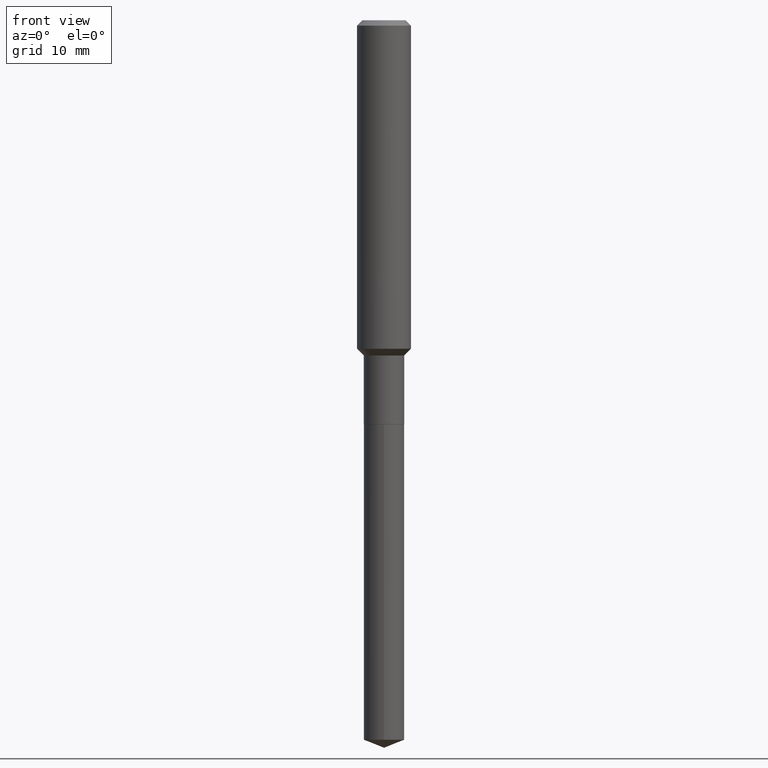
[diagram: clean part render]
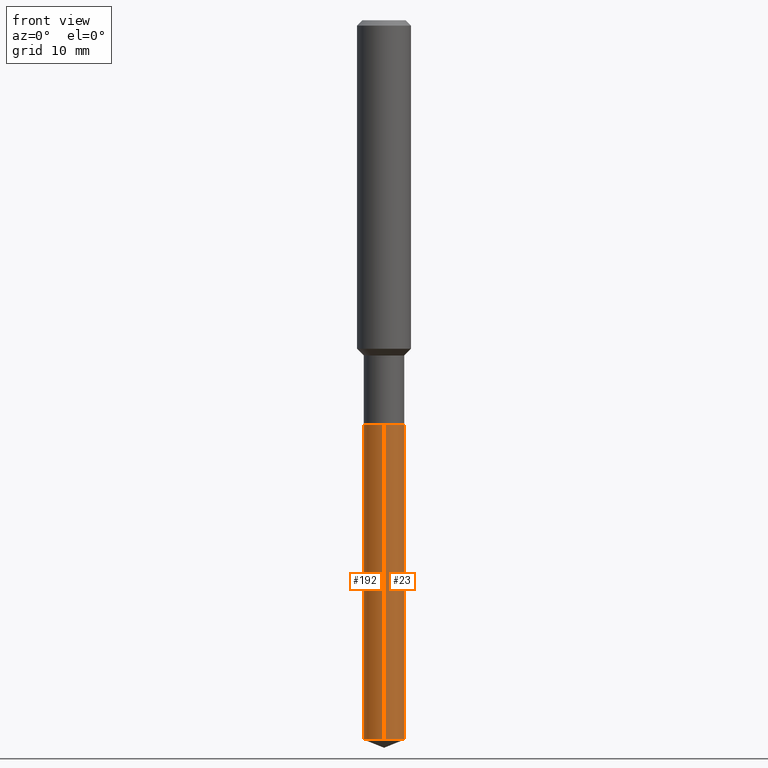
[diagram: same view with one multi-face feature highlighted, each face labeled with its STEP entity id]
A machine part, front view. The highlighted faces form ONE feature: a constant-radius fillet chain: 2 tangent blend faces with common blend radius 2.2504 mm. The faces share edges in the B-rep.
Their STEP definitions:
[1] entity #192 (Cylinder):
#12 = CARTESIAN_POINT ( 'NONE',  ( -6.186904932429597627E-16, -0.08860000000000617382, -1.771700000000000053 ) ) ;
#19 = CIRCLE ( 'NONE', #453, 0.08859999999999999820 ) ;
#33 = VERTEX_POINT ( 'NONE', #147 ) ;
#41 = CIRCLE ( 'NONE', #452, 0.08859999999999999820 ) ;
#66 = ORIENTED_EDGE ( 'NONE', *, *, #421, .F. ) ;
#67 = CARTESIAN_POINT ( 'NONE',  ( 6.295408638835256658E-16, 0.08859999999998896536, -3.154099531860517391 ) ) ;
#77 = CYLINDRICAL_SURFACE ( 'NONE', #303, 0.08859999999999999820 ) ;
#81 = CARTESIAN_POINT ( 'NONE',  ( -6.186904932429258417E-16, -0.08860000000001097553, -3.154099531860516059 ) ) ;
#93 = CARTESIAN_POINT ( 'NONE',  ( -6.186904932429597627E-16, -0.08860000000000617382, -1.771700000000000053 ) ) ;
#96 = DIRECTION ( 'NONE',  ( -2.445498752953222356E-29, 3.491438453366782686E-15, 1.000000000000000000 ) ) ;
#101 = LINE ( 'NONE', #93, #362 ) ;
#102 = ORIENTED_EDGE ( 'NONE', *, *, #149, .F. ) ;
#114 = VECTOR ( 'NONE', #377, 39.37007874015748143 ) ;
#134 = DIRECTION ( 'NONE',  ( -2.445498752953222356E-29, 3.491438453366782686E-15, 1.000000000000000000 ) ) ;
#145 = FACE_OUTER_BOUND ( 'NONE', #483, .T. ) ;
#146 = DIRECTION ( 'NONE',  ( -2.445498752953222356E-29, 3.491438453366782686E-15, 1.000000000000000000 ) ) ;
#147 = CARTESIAN_POINT ( 'NONE',  ( 6.295408638835258631E-16, 0.08859999999999380871, -1.771700000000000719 ) ) ;
#149 = EDGE_CURVE ( 'NONE', #202, #33, #367, .T. ) ;
#170 = ORIENTED_EDGE ( 'NONE', *, *, #294, .T. ) ;
#175 = DIRECTION ( 'NONE',  ( -6.982962677686265133E-15, -1.000000000000000000, 6.166699759964476650E-15 ) ) ;
#181 = CARTESIAN_POINT ( 'NONE',  ( 6.295408638834919420E-16, 0.08859999999999380871, -1.771700000000000719 ) ) ;
#192 = ADVANCED_FACE ( 'NONE', ( #145 ), #77, .T. ) ;
#200 = VERTEX_POINT ( 'NONE', #12 ) ;
#202 = VERTEX_POINT ( 'NONE', #67 ) ;
#254 = EDGE_CURVE ( 'NONE', #202, #404, #41, .T. ) ;
#267 = CARTESIAN_POINT ( 'NONE',  ( 4.332637083918206987E-29, -6.185857488028401870E-15, -1.771700000000000497 ) ) ;
#294 = EDGE_CURVE ( 'NONE', #404, #200, #101, .T. ) ;
#303 = AXIS2_PLACEMENT_3D ( 'NONE', #267, #134, #361 ) ;
#328 = CARTESIAN_POINT ( 'NONE',  ( 4.332637083918206987E-29, -6.185857488028401870E-15, -1.771700000000000497 ) ) ;
#347 = CARTESIAN_POINT ( 'NONE',  ( 7.713293415166218744E-29, -1.101242037148244784E-14, -3.154099531860516947 ) ) ;
#355 = DIRECTION ( 'NONE',  ( -2.445498752953222356E-29, 3.491438453366782686E-15, 1.000000000000000000 ) ) ;
#361 = DIRECTION ( 'NONE',  ( -6.982962677686265133E-15, -1.000000000000000000, 3.083349879982238325E-15 ) ) ;
#362 = VECTOR ( 'NONE', #355, 39.37007874015748143 ) ;
#367 = LINE ( 'NONE', #181, #114 ) ;
#377 = DIRECTION ( 'NONE',  ( -2.445498752953222356E-29, 3.491438453366782686E-15, 1.000000000000000000 ) ) ;
#386 = ORIENTED_EDGE ( 'NONE', *, *, #254, .T. ) ;
#404 = VERTEX_POINT ( 'NONE', #81 ) ;
#421 = EDGE_CURVE ( 'NONE', #33, #200, #19, .T. ) ;
#446 = DIRECTION ( 'NONE',  ( -6.982962677686265133E-15, -1.000000000000000000, 3.083349879982238325E-15 ) ) ;
#452 = AXIS2_PLACEMENT_3D ( 'NONE', #347, #96, #175 ) ;
#453 = AXIS2_PLACEMENT_3D ( 'NONE', #328, #146, #446 ) ;
#483 = EDGE_LOOP ( 'NONE', ( #102, #386, #170, #66 ) ) ;
[2] entity #23 (Cylinder):
#12 = CARTESIAN_POINT ( 'NONE',  ( -6.186904932429597627E-16, -0.08860000000000617382, -1.771700000000000053 ) ) ;
#23 = ADVANCED_FACE ( 'NONE', ( #282 ), #324, .T. ) ;
#26 = AXIS2_PLACEMENT_3D ( 'NONE', #482, #249, #257 ) ;
#30 = ORIENTED_EDGE ( 'NONE', *, *, #455, .F. ) ;
#33 = VERTEX_POINT ( 'NONE', #147 ) ;
#38 = EDGE_CURVE ( 'NONE', #404, #202, #233, .T. ) ;
#49 = AXIS2_PLACEMENT_3D ( 'NONE', #298, #292, #450 ) ;
#67 = CARTESIAN_POINT ( 'NONE',  ( 6.295408638835256658E-16, 0.08859999999998896536, -3.154099531860517391 ) ) ;
#81 = CARTESIAN_POINT ( 'NONE',  ( -6.186904932429258417E-16, -0.08860000000001097553, -3.154099531860516059 ) ) ;
#93 = CARTESIAN_POINT ( 'NONE',  ( -6.186904932429597627E-16, -0.08860000000000617382, -1.771700000000000053 ) ) ;
#101 = LINE ( 'NONE', #93, #362 ) ;
#114 = VECTOR ( 'NONE', #377, 39.37007874015748143 ) ;
#127 = DIRECTION ( 'NONE',  ( -6.982962677686265133E-15, -1.000000000000000000, 3.083349879982238325E-15 ) ) ;
#147 = CARTESIAN_POINT ( 'NONE',  ( 6.295408638835258631E-16, 0.08859999999999380871, -1.771700000000000719 ) ) ;
#149 = EDGE_CURVE ( 'NONE', #202, #33, #367, .T. ) ;
#181 = CARTESIAN_POINT ( 'NONE',  ( 6.295408638834919420E-16, 0.08859999999999380871, -1.771700000000000719 ) ) ;
#200 = VERTEX_POINT ( 'NONE', #12 ) ;
#202 = VERTEX_POINT ( 'NONE', #67 ) ;
#233 = CIRCLE ( 'NONE', #49, 0.08859999999999999820 ) ;
#249 = DIRECTION ( 'NONE',  ( -2.445498752953222356E-29, 3.491438453366782686E-15, 1.000000000000000000 ) ) ;
#252 = EDGE_LOOP ( 'NONE', ( #265, #432, #30, #419 ) ) ;
#257 = DIRECTION ( 'NONE',  ( -6.982962677686265133E-15, -1.000000000000000000, 3.083349879982238325E-15 ) ) ;
#260 = AXIS2_PLACEMENT_3D ( 'NONE', #428, #354, #127 ) ;
#265 = ORIENTED_EDGE ( 'NONE', *, *, #38, .T. ) ;
#282 = FACE_OUTER_BOUND ( 'NONE', #252, .T. ) ;
#292 = DIRECTION ( 'NONE',  ( -2.445498752953222356E-29, 3.491438453366782686E-15, 1.000000000000000000 ) ) ;
#294 = EDGE_CURVE ( 'NONE', #404, #200, #101, .T. ) ;
#298 = CARTESIAN_POINT ( 'NONE',  ( 7.713293415166218744E-29, -1.101242037148244784E-14, -3.154099531860516947 ) ) ;
#324 = CYLINDRICAL_SURFACE ( 'NONE', #26, 0.08859999999999999820 ) ;
#354 = DIRECTION ( 'NONE',  ( -2.445498752953222356E-29, 3.491438453366782686E-15, 1.000000000000000000 ) ) ;
#355 = DIRECTION ( 'NONE',  ( -2.445498752953222356E-29, 3.491438453366782686E-15, 1.000000000000000000 ) ) ;
#362 = VECTOR ( 'NONE', #355, 39.37007874015748143 ) ;
#367 = LINE ( 'NONE', #181, #114 ) ;
#377 = DIRECTION ( 'NONE',  ( -2.445498752953222356E-29, 3.491438453366782686E-15, 1.000000000000000000 ) ) ;
#404 = VERTEX_POINT ( 'NONE', #81 ) ;
#419 = ORIENTED_EDGE ( 'NONE', *, *, #294, .F. ) ;
#428 = CARTESIAN_POINT ( 'NONE',  ( 4.332637083918206987E-29, -6.185857488028401870E-15, -1.771700000000000497 ) ) ;
#432 = ORIENTED_EDGE ( 'NONE', *, *, #149, .T. ) ;
#450 = DIRECTION ( 'NONE',  ( -6.982962677686265133E-15, -1.000000000000000000, 6.166699759964476650E-15 ) ) ;
#455 = EDGE_CURVE ( 'NONE', #200, #33, #465, .T. ) ;
#465 = CIRCLE ( 'NONE', #260, 0.08859999999999999820 ) ;
#482 = CARTESIAN_POINT ( 'NONE',  ( 4.332637083918206987E-29, -6.185857488028401870E-15, -1.771700000000000497 ) ) ;